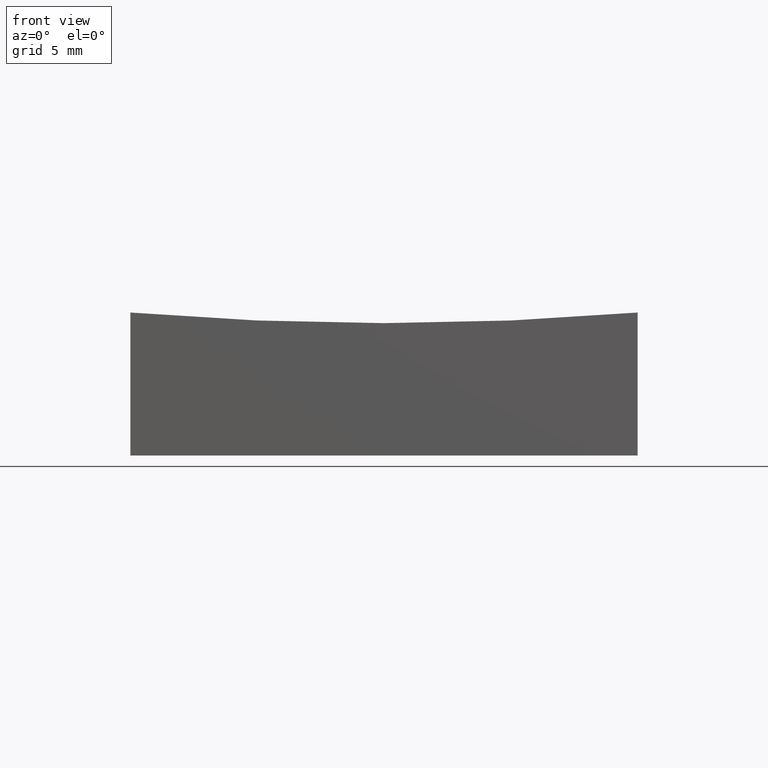
[diagram: clean part render]
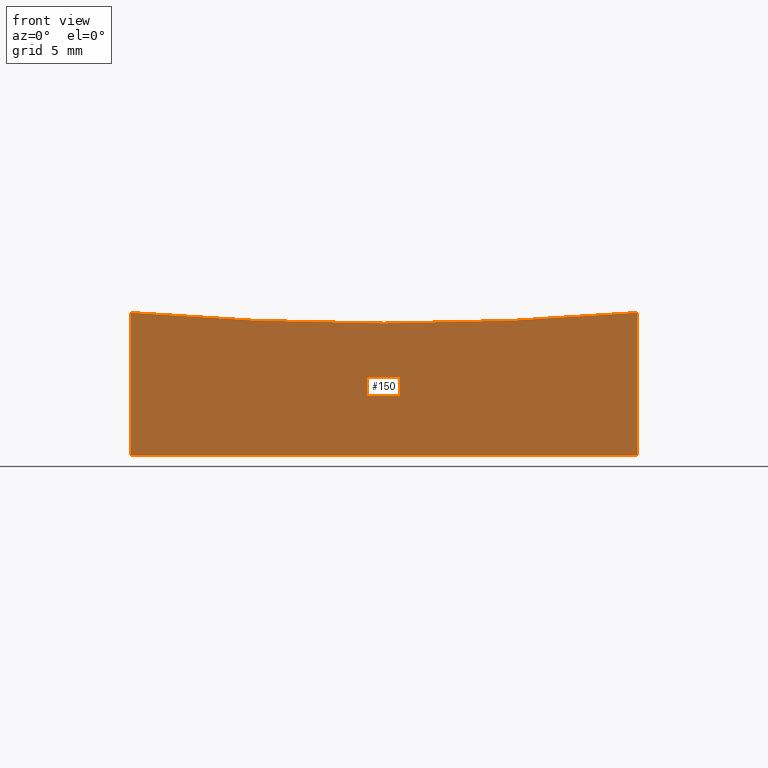
[diagram: same view with one face highlighted and labeled with its STEP entity id]
A machine part, front view. The second image highlights one B-rep face of the part: STEP entity #150.
In plain terms, the highlighted planar face has unit normal (0, 1, 0).
Its self-contained STEP definition (entity closure, byte-faithful):
#3 = DIRECTION ( 'NONE',  ( 1.000000000000000000, 0.0000000000000000000, 0.0000000000000000000 ) ) ;
#11 = ORIENTED_EDGE ( 'NONE', *, *, #197, .T. ) ;
#13 = DIRECTION ( 'NONE',  ( 0.0000000000000000000, 1.000000000000000000, 0.0000000000000000000 ) ) ;
#14 = VERTEX_POINT ( 'NONE', #80 ) ;
#21 = VECTOR ( 'NONE', #73, 1000.000000000000000 ) ;
#23 = LINE ( 'NONE', #198, #78 ) ;
#25 = CARTESIAN_POINT ( 'NONE',  ( 12.50000000000000355, -12.50000000000000000, 7.045308902337731993 ) ) ;
#30 = ORIENTED_EDGE ( 'NONE', *, *, #202, .T. ) ;
#39 = VECTOR ( 'NONE', #122, 1000.000000000000000 ) ;
#63 = VERTEX_POINT ( 'NONE', #242 ) ;
#64 = ORIENTED_EDGE ( 'NONE', *, *, #247, .F. ) ;
#73 = DIRECTION ( 'NONE',  ( -0.0000000000000000000, -0.0000000000000000000, -1.000000000000000000 ) ) ;
#78 = VECTOR ( 'NONE', #3, 1000.000000000000000 ) ;
#80 = CARTESIAN_POINT ( 'NONE',  ( -12.49999999999999645, -12.50000000000000000, 7.045308902337731993 ) ) ;
#84 = DIRECTION ( 'NONE',  ( 0.0000000000000000000, 0.0000000000000000000, 1.000000000000000000 ) ) ;
#85 = VERTEX_POINT ( 'NONE', #25 ) ;
#89 = LINE ( 'NONE', #129, #21 ) ;
#106 = DIRECTION ( 'NONE',  ( 0.0000000000000000000, -0.0000000000000000000, 1.000000000000000000 ) ) ;
#119 = CARTESIAN_POINT ( 'NONE',  ( 1.910449006669871151E-14, -12.50000000000000000, 156.0000000000000000 ) ) ;
#122 = DIRECTION ( 'NONE',  ( -0.0000000000000000000, -0.0000000000000000000, -1.000000000000000000 ) ) ;
#123 = DIRECTION ( 'NONE',  ( 0.0000000000000000000, 1.000000000000000000, 0.0000000000000000000 ) ) ;
#129 = CARTESIAN_POINT ( 'NONE',  ( -12.49999999999999645, -12.50000000000000000, 20.00000000000000000 ) ) ;
#140 = ORIENTED_EDGE ( 'NONE', *, *, #228, .T. ) ;
#148 = AXIS2_PLACEMENT_3D ( 'NONE', #192, #123, #106 ) ;
#150 = ADVANCED_FACE ( 'NONE', ( #232 ), #250, .F. ) ;
#173 = LINE ( 'NONE', #191, #39 ) ;
#175 = CARTESIAN_POINT ( 'NONE',  ( 12.50000000000000355, -12.50000000000000000, 0.0000000000000000000 ) ) ;
#191 = CARTESIAN_POINT ( 'NONE',  ( 12.50000000000000355, -12.50000000000000000, 20.00000000000000000 ) ) ;
#192 = CARTESIAN_POINT ( 'NONE',  ( -12.49999999999999645, -12.50000000000000000, 20.00000000000000000 ) ) ;
#197 = EDGE_CURVE ( 'NONE', #85, #14, #208, .T. ) ;
#198 = CARTESIAN_POINT ( 'NONE',  ( -12.49999999999999645, -12.50000000000000000, 0.0000000000000000000 ) ) ;
#202 = EDGE_CURVE ( 'NONE', #14, #63, #89, .T. ) ;
#208 = CIRCLE ( 'NONE', #240, 149.4782592887674184 ) ;
#209 = EDGE_LOOP ( 'NONE', ( #64, #11, #30, #140 ) ) ;
#228 = EDGE_CURVE ( 'NONE', #63, #245, #23, .T. ) ;
#232 = FACE_OUTER_BOUND ( 'NONE', #209, .T. ) ;
#240 = AXIS2_PLACEMENT_3D ( 'NONE', #119, #13, #84 ) ;
#242 = CARTESIAN_POINT ( 'NONE',  ( -12.49999999999999645, -12.50000000000000000, 0.0000000000000000000 ) ) ;
#245 = VERTEX_POINT ( 'NONE', #175 ) ;
#247 = EDGE_CURVE ( 'NONE', #85, #245, #173, .T. ) ;
#250 = PLANE ( 'NONE',  #148 ) ;